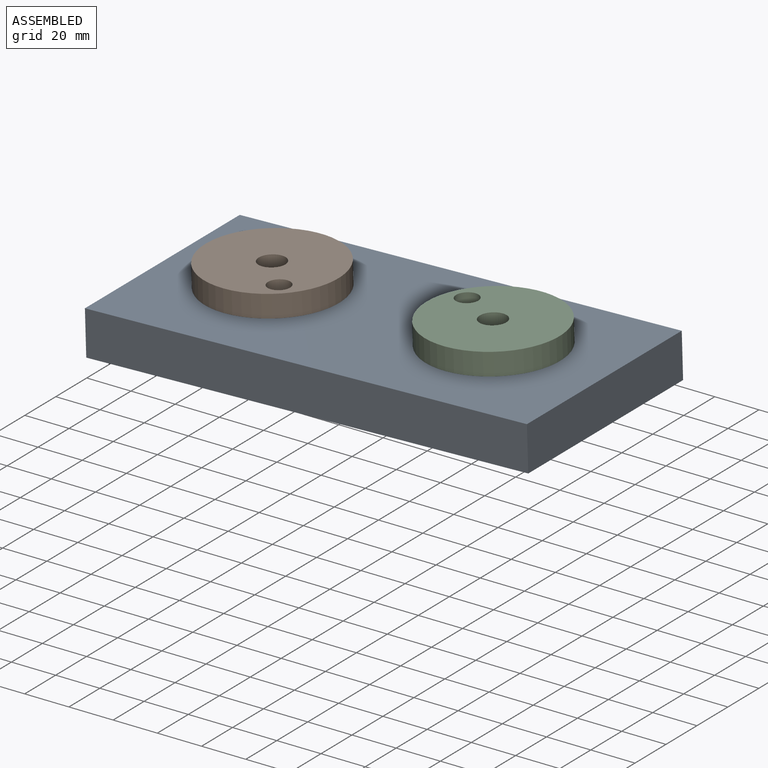
[diagram: assembled view]
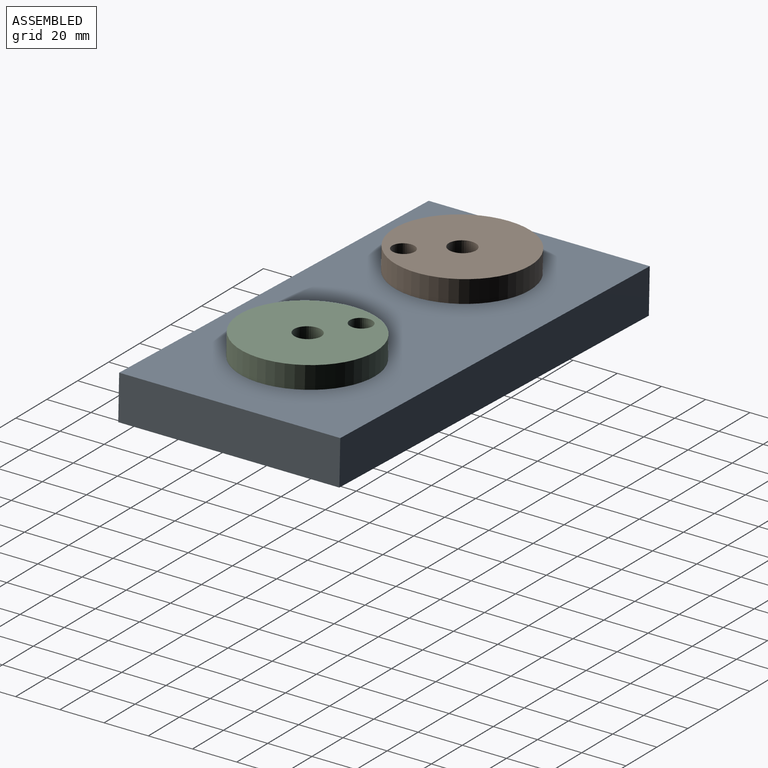
[diagram: assembled view, second angle]
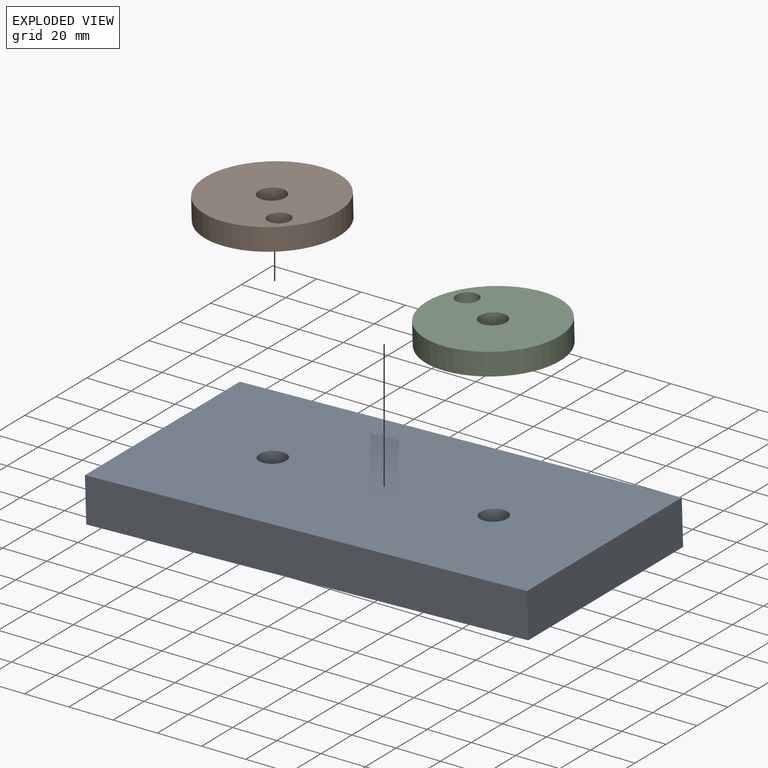
[diagram: exploded view]
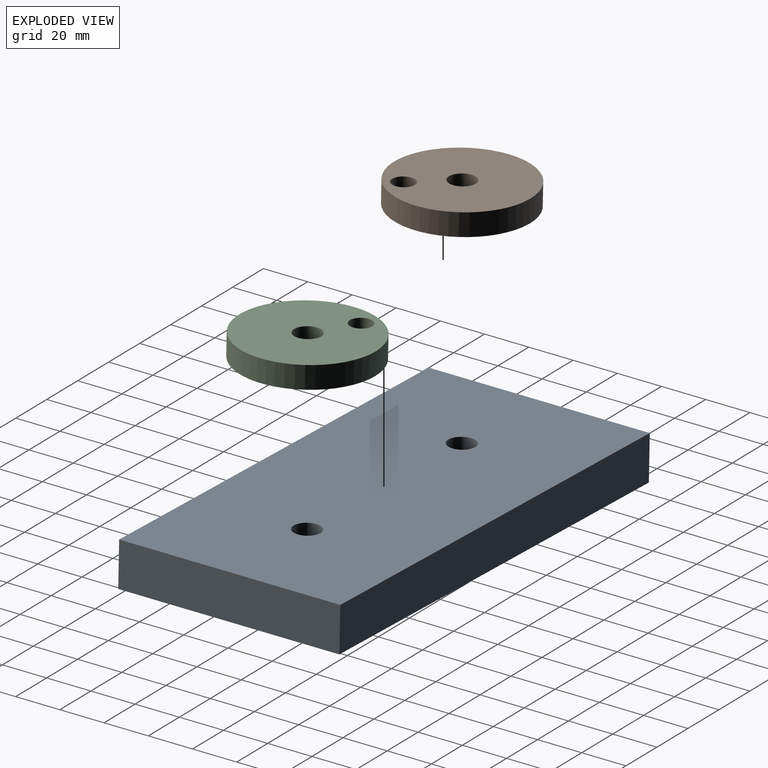
[diagram: exploded view, second angle]
ASSEMBLY  parts=3 mates=2
PART A: 8 faces, bbox 200x100x20 mm
  f0: plane 200x20mm, normal (0,-1,0), area 4000mm2, adj f1,f3,f4,f5
  f1: plane 100x20mm, normal (1,0,0), area 2000mm2, adj f0,f2,f4,f5
  f2: plane 200x20mm, normal (0,1,0), area 4000mm2, adj f1,f3,f4,f5
  f3: plane 100x20mm, normal (-1,0,0), area 2000mm2, adj f0,f2,f4,f5
  f4: plane 200x100mm, normal (0,0,1), area 19773.8mm2, adj f0,f1,f2,f3,f6,f7
  f5: plane 200x100mm, normal (0,0,-1), area 19773.8mm2, adj f0,f1,f2,f3,f6,f7
  f6: cylinder r=6mm len=20mm, axis (0,0,1), area 754mm2, adj f4,f5
  f7: cylinder r=6mm len=20mm, axis (0,0,1), area 754mm2, adj f4,f5
PART B: 5 faces, bbox 60x60x10 mm
  f0: cylinder r=30mm len=60mm, axis (0,0,-1), area 1885mm2, adj f1,f2
  f1: plane 60x60mm, normal (0,0,1), area 2635.8mm2, adj f0,f3,f4
  f2: plane 60x60mm, normal (0,0,-1), area 2635.8mm2, adj f0,f3,f4
  f3: cylinder r=5mm len=10mm, axis (0,0,1), area 314.2mm2, adj f1,f2
  f4: cylinder r=6mm len=12mm, axis (0,0,1), area 377mm2, adj f1,f2
PART C: same geometry as B
PLACE A rot(axis=(0,-1,0),1.7deg) t=(77.67,278.73,141.71)mm fixed
PLACE B rot(axis=(-0.91,0.41,-0.01),179.3deg) t=(26.72,278.73,172.18)mm
PLACE C rot(axis=(-0.02,0,1),150.8deg) t=(126.98,278.73,165.23)mm
MATE revolute A.f7 <-> B.f0  axis (-0.03,0,1) through (27.08,278.73,160.18)mm
MATE revolute A.f6 <-> C.f0  axis (-0.03,0,1) through (127.04,278.73,163.23)mm
